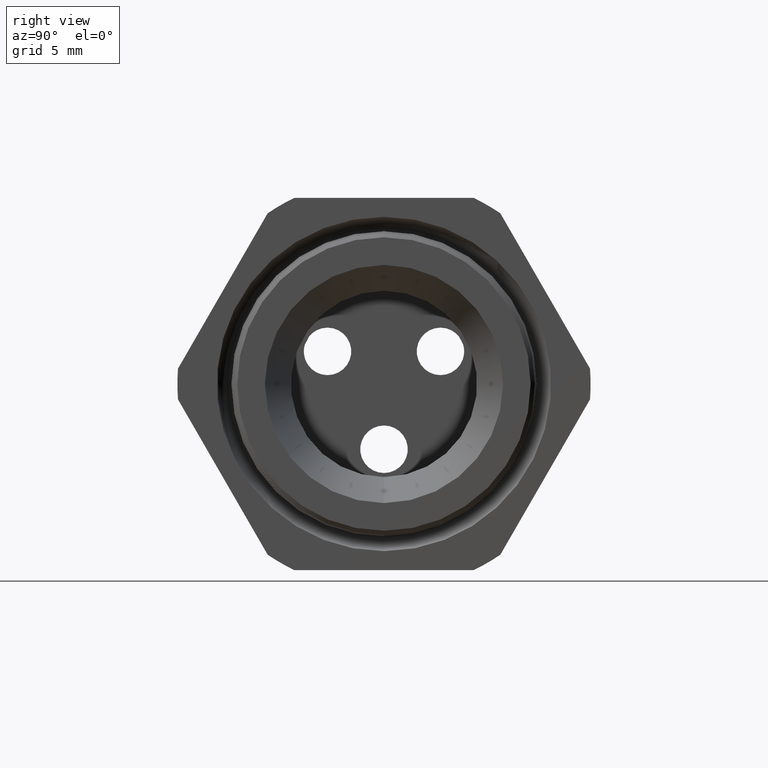
[diagram: clean part render]
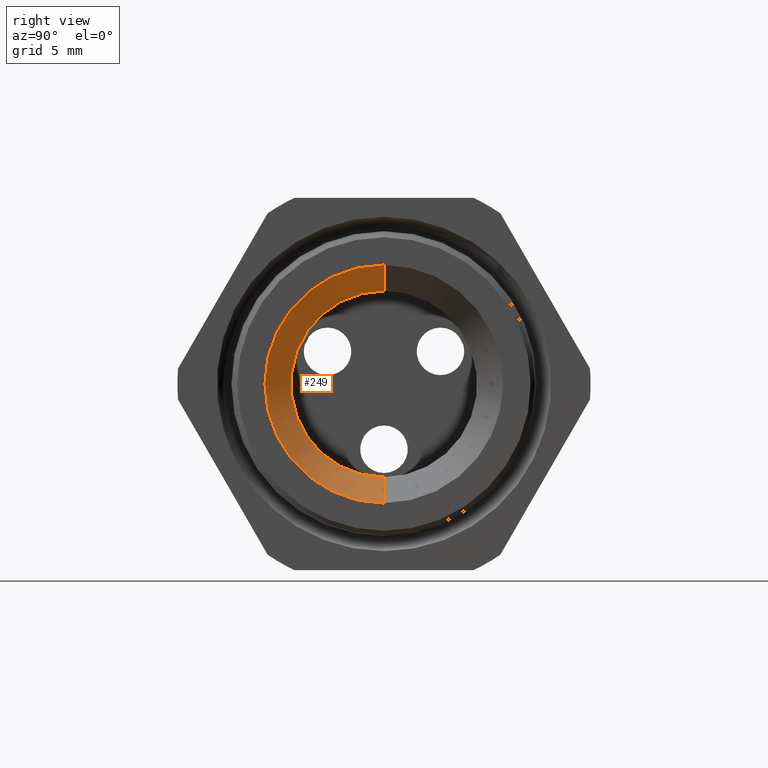
[diagram: same view with one face highlighted and labeled with its STEP entity id]
A machine part, right view. The second image highlights one B-rep face of the part: STEP entity #249.
In plain terms, the highlighted conical surface has half-angle 5.108 deg.
Its self-contained STEP definition (entity closure, byte-faithful):
#223 = ORIENTED_EDGE ( 'NONE', *, *, #271, .T. ) ;
#224 = EDGE_CURVE ( 'NONE', #230, #243, #1501, .T. ) ;
#227 = VERTEX_POINT ( 'NONE', #1492 ) ;
#229 = EDGE_LOOP ( 'NONE', ( #234, #231, #223, #265 ) ) ;
#230 = VERTEX_POINT ( 'NONE', #1490 ) ;
#231 = ORIENTED_EDGE ( 'NONE', *, *, #233, .T. ) ;
#233 = EDGE_CURVE ( 'NONE', #230, #227, #1489, .T. ) ;
#234 = ORIENTED_EDGE ( 'NONE', *, *, #224, .F. ) ;
#243 = VERTEX_POINT ( 'NONE', #1525 ) ;
#249 = ADVANCED_FACE ( 'NONE', ( #1579 ), #1578, .F. ) ;
#265 = ORIENTED_EDGE ( 'NONE', *, *, #266, .F. ) ;
#266 = EDGE_CURVE ( 'NONE', #243, #267, #1552, .T. ) ;
#267 = VERTEX_POINT ( 'NONE', #1606 ) ;
#271 = EDGE_CURVE ( 'NONE', #227, #267, #1603, .T. ) ;
#1487 = VECTOR ( 'NONE', #1548, 39.37007874015748900 ) ;
#1488 = CARTESIAN_POINT ( 'NONE',  ( -0.7854330708661414500, 2.877919977996279200E-017, 0.2349999999999999600 ) ) ;
#1489 = LINE ( 'NONE', #1488, #1487 ) ;
#1490 = CARTESIAN_POINT ( 'NONE',  ( -0.7854330708661414500, 2.877919977996279200E-017, 0.2349999999999999600 ) ) ;
#1492 = CARTESIAN_POINT ( 'NONE',  ( -0.04999999999999998200, 3.683027365930742200E-017, 0.3007420072869181300 ) ) ;
#1497 = DIRECTION ( 'NONE',  ( 0.0000000000000000000, 0.0000000000000000000, -1.000000000000000000 ) ) ;
#1498 = DIRECTION ( 'NONE',  ( 1.000000000000000000, 0.0000000000000000000, 0.0000000000000000000 ) ) ;
#1499 = CARTESIAN_POINT ( 'NONE',  ( -0.7854330708661414500, 0.0000000000000000000, 0.0000000000000000000 ) ) ;
#1500 = AXIS2_PLACEMENT_3D ( 'NONE', #1499, #1498, #1497 ) ;
#1501 = CIRCLE ( 'NONE', #1500, 0.2349999999999999600 ) ;
#1525 = CARTESIAN_POINT ( 'NONE',  ( -0.7854330708661414500, 0.0000000000000000000, -0.2349999999999999600 ) ) ;
#1548 = DIRECTION ( 'NONE',  ( 0.9960283015027057200, 1.090391193840671700E-017, 0.08903719787614228200 ) ) ;
#1552 = LINE ( 'NONE', #1609, #1608 ) ;
#1573 = DIRECTION ( 'NONE',  ( 0.0000000000000000000, 0.0000000000000000000, -1.000000000000000000 ) ) ;
#1574 = DIRECTION ( 'NONE',  ( 1.000000000000000000, 0.0000000000000000000, 0.0000000000000000000 ) ) ;
#1575 = CARTESIAN_POINT ( 'NONE',  ( -0.7854330708661414500, 0.0000000000000000000, 0.0000000000000000000 ) ) ;
#1576 = AXIS2_PLACEMENT_3D ( 'NONE', #1575, #1574, #1573 ) ;
#1578 = CONICAL_SURFACE ( 'NONE', #1576, 0.2349999999999999600, 0.08915526176478623400 ) ;
#1579 = FACE_OUTER_BOUND ( 'NONE', #229, .T. ) ;
#1599 = DIRECTION ( 'NONE',  ( 0.0000000000000000000, 0.0000000000000000000, -1.000000000000000000 ) ) ;
#1600 = DIRECTION ( 'NONE',  ( 1.000000000000000000, 0.0000000000000000000, 0.0000000000000000000 ) ) ;
#1601 = CARTESIAN_POINT ( 'NONE',  ( -0.04999999999999998200, 0.0000000000000000000, 0.0000000000000000000 ) ) ;
#1602 = AXIS2_PLACEMENT_3D ( 'NONE', #1601, #1600, #1599 ) ;
#1603 = CIRCLE ( 'NONE', #1602, 0.3007420072869181300 ) ;
#1606 = CARTESIAN_POINT ( 'NONE',  ( -0.04999999999999998200, 0.0000000000000000000, -0.3007420072869181300 ) ) ;
#1607 = DIRECTION ( 'NONE',  ( 0.9960283015027057200, 0.0000000000000000000, -0.08903719787614228200 ) ) ;
#1608 = VECTOR ( 'NONE', #1607, 39.37007874015748900 ) ;
#1609 = CARTESIAN_POINT ( 'NONE',  ( -0.7854330708661414500, 0.0000000000000000000, -0.2349999999999999600 ) ) ;